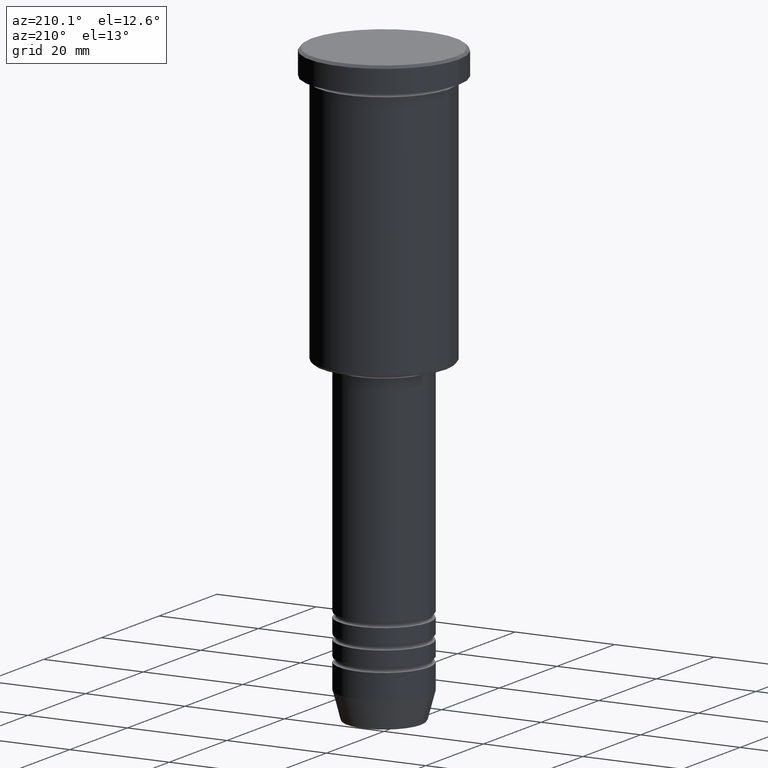
[diagram: clean part render]
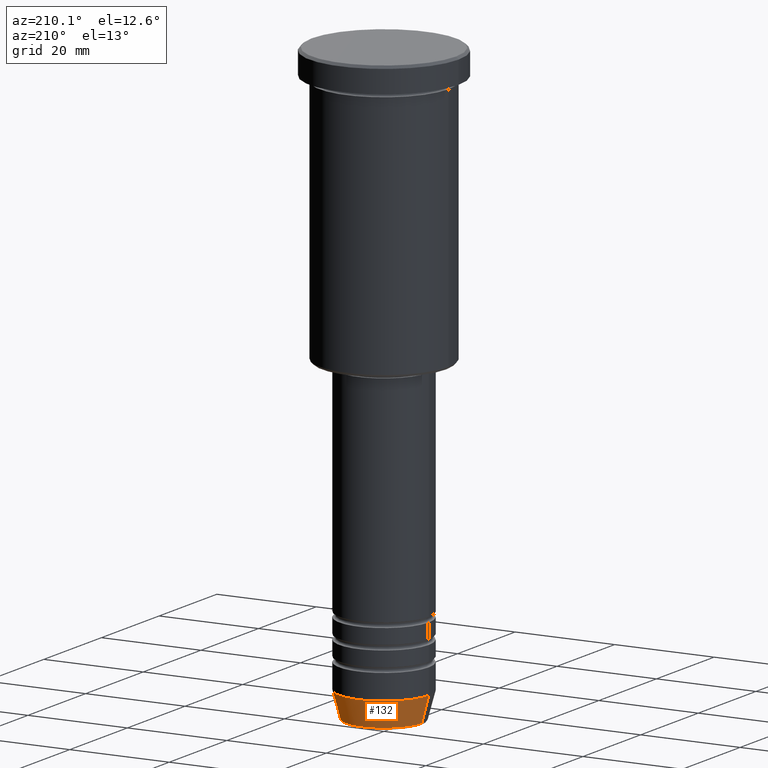
[diagram: same view with one face highlighted and labeled with its STEP entity id]
A machine part, auxiliary view. The second image highlights one B-rep face of the part: STEP entity #132.
In plain terms, the highlighted conical surface has half-angle 15 deg.
Its self-contained STEP definition (entity closure, byte-faithful):
#7 = CARTESIAN_POINT ( 'NONE',  ( 9.000000000000001776, 0.000000000000000000, -114.4999999999999858 ) ) ;
#48 = EDGE_CURVE ( 'NONE', #1031, #1006, #575, .T. ) ;
#89 = AXIS2_PLACEMENT_3D ( 'NONE', #1035, #694, #1052 ) ;
#90 = AXIS2_PLACEMENT_3D ( 'NONE', #1028, #388, #99 ) ;
#98 = CARTESIAN_POINT ( 'NONE',  ( 0.000000000000000000, 0.000000000000000000, -114.4999999999999858 ) ) ;
#99 = DIRECTION ( 'NONE',  ( 1.000000000000000000, 0.000000000000000000, 0.000000000000000000 ) ) ;
#120 = DIRECTION ( 'NONE',  ( -0.000000000000000000, -0.000000000000000000, 1.000000000000000000 ) ) ;
#132 = ADVANCED_FACE ( 'NONE', ( #951 ), #980, .T. ) ;
#261 = CARTESIAN_POINT ( 'NONE',  ( -7.625578860783880586, 1.018023096791544096E-15, -119.6294095225512422 ) ) ;
#324 = EDGE_CURVE ( 'NONE', #459, #1031, #881, .T. ) ;
#327 = ORIENTED_EDGE ( 'NONE', *, *, #612, .F. ) ;
#350 = EDGE_LOOP ( 'NONE', ( #965, #1066, #1171, #327 ) ) ;
#370 = VECTOR ( 'NONE', #832, 1000.000000000000000 ) ;
#375 = CIRCLE ( 'NONE', #512, 9.000000000000001776 ) ;
#388 = DIRECTION ( 'NONE',  ( -0.000000000000000000, -0.000000000000000000, 1.000000000000000000 ) ) ;
#459 = VERTEX_POINT ( 'NONE', #510 ) ;
#510 = CARTESIAN_POINT ( 'NONE',  ( 7.625578860783879698, 0.000000000000000000, -119.6294095225512422 ) ) ;
#512 = AXIS2_PLACEMENT_3D ( 'NONE', #98, #120, #746 ) ;
#527 = VECTOR ( 'NONE', #800, 1000.000000000000000 ) ;
#575 = LINE ( 'NONE', #909, #370 ) ;
#612 = EDGE_CURVE ( 'NONE', #459, #759, #699, .T. ) ;
#653 = EDGE_CURVE ( 'NONE', #759, #1006, #375, .T. ) ;
#694 = DIRECTION ( 'NONE',  ( -0.000000000000000000, -0.000000000000000000, 1.000000000000000000 ) ) ;
#699 = LINE ( 'NONE', #805, #527 ) ;
#708 = CARTESIAN_POINT ( 'NONE',  ( -9.000000000000001776, 1.102182119232617911E-15, -114.4999999999999858 ) ) ;
#746 = DIRECTION ( 'NONE',  ( 1.000000000000000000, 0.000000000000000000, 0.000000000000000000 ) ) ;
#759 = VERTEX_POINT ( 'NONE', #7 ) ;
#800 = DIRECTION ( 'NONE',  ( 0.2588190451025214056, 0.000000000000000000, 0.9659258262890680902 ) ) ;
#805 = CARTESIAN_POINT ( 'NONE',  ( 9.000000000000001776, 0.000000000000000000, -114.4999999999999858 ) ) ;
#832 = DIRECTION ( 'NONE',  ( -0.2588190451025214056, 3.169619151431772953E-17, 0.9659258262890680902 ) ) ;
#881 = CIRCLE ( 'NONE', #90, 7.625578860783879698 ) ;
#909 = CARTESIAN_POINT ( 'NONE',  ( -9.000000000000001776, 1.102182119232617911E-15, -114.4999999999999858 ) ) ;
#951 = FACE_OUTER_BOUND ( 'NONE', #350, .T. ) ;
#965 = ORIENTED_EDGE ( 'NONE', *, *, #324, .T. ) ;
#980 = CONICAL_SURFACE ( 'NONE', #89, 9.000000000000001776, 0.2617993877991501295 ) ;
#1006 = VERTEX_POINT ( 'NONE', #708 ) ;
#1028 = CARTESIAN_POINT ( 'NONE',  ( 0.000000000000000000, 0.000000000000000000, -119.6294095225512422 ) ) ;
#1031 = VERTEX_POINT ( 'NONE', #261 ) ;
#1035 = CARTESIAN_POINT ( 'NONE',  ( 0.000000000000000000, 0.000000000000000000, -114.4999999999999858 ) ) ;
#1052 = DIRECTION ( 'NONE',  ( 1.000000000000000000, 0.000000000000000000, 0.000000000000000000 ) ) ;
#1066 = ORIENTED_EDGE ( 'NONE', *, *, #48, .T. ) ;
#1171 = ORIENTED_EDGE ( 'NONE', *, *, #653, .F. ) ;